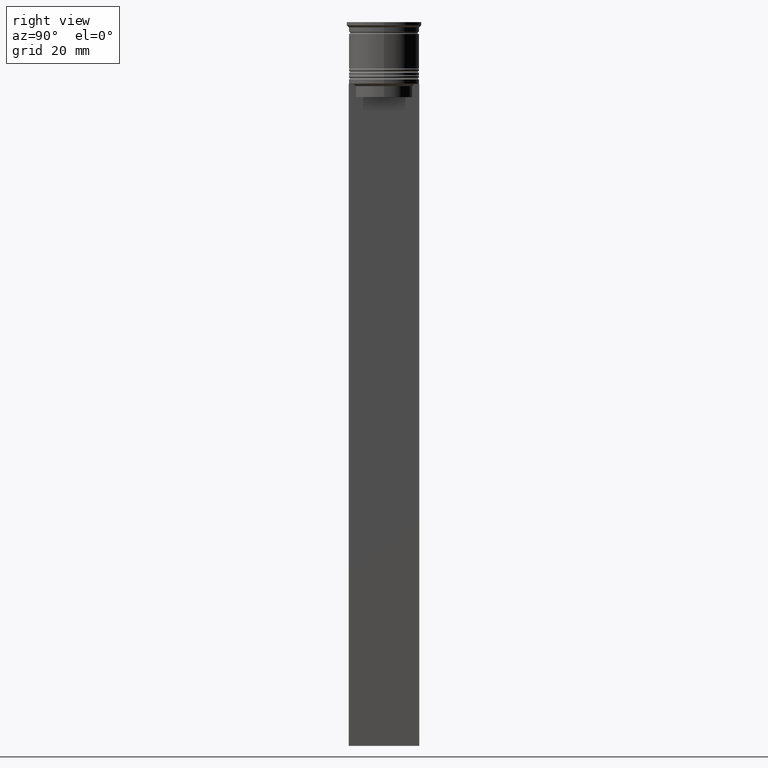
[diagram: clean part render]
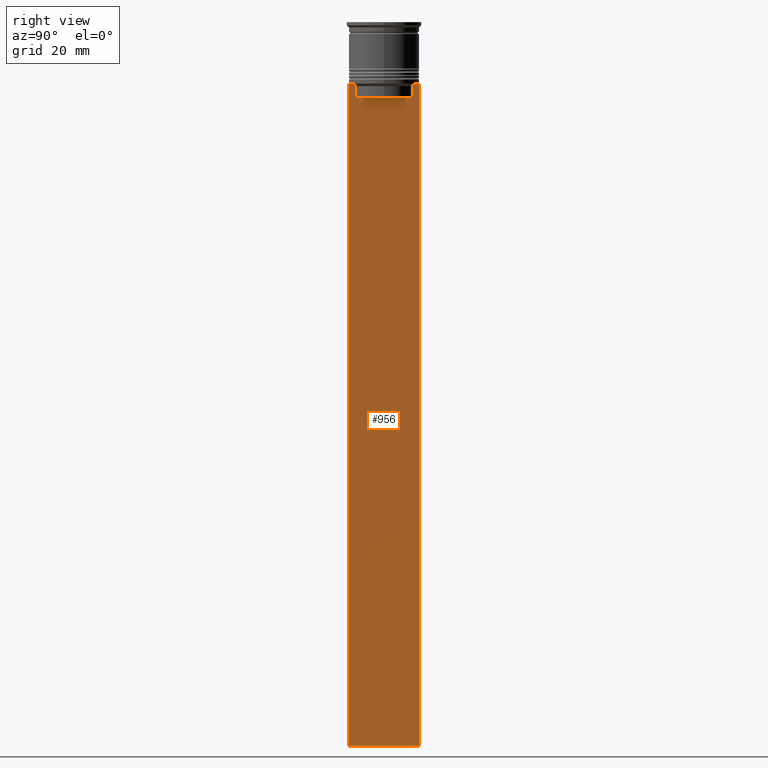
[diagram: same view with one face highlighted and labeled with its STEP entity id]
A machine part, right view. The second image highlights one B-rep face of the part: STEP entity #956.
In plain terms, the highlighted planar face has unit normal (-1, 0, 0).
Its self-contained STEP definition (entity closure, byte-faithful):
#54 = CARTESIAN_POINT ( 'NONE',  ( 0.5000000000000001110, -8.000000000000003553, -14.00000000000000178 ) ) ;
#56 = CARTESIAN_POINT ( 'NONE',  ( 0.5000000000000001110, -8.000000000000003553, 2.031219541881394530 ) ) ;
#57 = CARTESIAN_POINT ( 'NONE',  ( 0.5000000000000001110, 6.881860213634098500, -14.00000000000000178 ) ) ;
#103 = CARTESIAN_POINT ( 'NONE',  ( 0.5000000000000001110, -8.000000000000003553, -14.00000000000000178 ) ) ;
#155 = EDGE_CURVE ( 'NONE', #1501, #272, #1306, .T. ) ;
#199 = CARTESIAN_POINT ( 'NONE',  ( 0.5000000000000001110, -8.000000000000003553, -14.00000000000000178 ) ) ;
#263 = ORIENTED_EDGE ( 'NONE', *, *, #807, .F. ) ;
#272 = VERTEX_POINT ( 'NONE', #1562 ) ;
#277 = EDGE_CURVE ( 'NONE', #458, #2388, #1070, .T. ) ;
#278 = LINE ( 'NONE', #472, #1322 ) ;
#373 = EDGE_CURVE ( 'NONE', #2143, #2306, #278, .T. ) ;
#391 = VERTEX_POINT ( 'NONE', #57 ) ;
#401 = CARTESIAN_POINT ( 'NONE',  ( 0.5000000000000001110, -6.547597841511247019, -14.33335192438652150 ) ) ;
#458 = VERTEX_POINT ( 'NONE', #1868 ) ;
#463 = VECTOR ( 'NONE', #1763, 1000.000000000000000 ) ;
#472 = CARTESIAN_POINT ( 'NONE',  ( 0.5000000000000001110, 6.399999999999999467, -17.00000000000000000 ) ) ;
#481 = ORIENTED_EDGE ( 'NONE', *, *, #373, .T. ) ;
#505 = DIRECTION ( 'NONE',  ( -1.000000000000000000, 0.000000000000000000, 0.000000000000000000 ) ) ;
#517 = EDGE_CURVE ( 'NONE', #2233, #1146, #1831, .T. ) ;
#560 = CARTESIAN_POINT ( 'NONE',  ( 0.5000000000000001110, 6.380438856379708312, -14.50000000000000000 ) ) ;
#573 = VECTOR ( 'NONE', #1440, 1000.000000000000000 ) ;
#617 = VECTOR ( 'NONE', #1702, 1000.000000000000000 ) ;
#655 = VECTOR ( 'NONE', #777, 1000.000000000000000 ) ;
#668 = LINE ( 'NONE', #1034, #720 ) ;
#682 = CARTESIAN_POINT ( 'NONE',  ( 0.5000000000000001110, -8.000000000000003553, -163.9999999999999716 ) ) ;
#694 = CARTESIAN_POINT ( 'NONE',  ( 0.5000000000000001110, 6.881860213634098500, -14.00000000000000178 ) ) ;
#720 = VECTOR ( 'NONE', #1812, 1000.000000000000000 ) ;
#777 = DIRECTION ( 'NONE',  ( 0.000000000000000000, 0.000000000000000000, -1.000000000000000000 ) ) ;
#807 = EDGE_CURVE ( 'NONE', #2233, #272, #1953, .T. ) ;
#841 = VECTOR ( 'NONE', #2331, 1000.000000000000000 ) ;
#881 = EDGE_CURVE ( 'NONE', #391, #1020, #1169, .T. ) ;
#885 = DIRECTION ( 'NONE',  ( -0.000000000000000000, -0.000000000000000000, 1.000000000000000000 ) ) ;
#909 = DIRECTION ( 'NONE',  ( 0.000000000000000000, -1.000000000000000000, 0.000000000000000000 ) ) ;
#956 = ADVANCED_FACE ( 'NONE', ( #2403 ), #1435, .F. ) ;
#962 = CARTESIAN_POINT ( 'NONE',  ( 0.5000000000000001110, -7.884161337770806632, -14.00000000000000178 ) ) ;
#977 = CARTESIAN_POINT ( 'NONE',  ( 0.5000000000000001110, 7.884161337770806632, -14.00000000000000178 ) ) ;
#1020 = VERTEX_POINT ( 'NONE', #560 ) ;
#1034 = CARTESIAN_POINT ( 'NONE',  ( 0.5000000000000001110, -8.000000000000003553, -14.00000000000000178 ) ) ;
#1037 = VECTOR ( 'NONE', #2224, 1000.000000000000000 ) ;
#1055 = VERTEX_POINT ( 'NONE', #962 ) ;
#1068 = LINE ( 'NONE', #1847, #1329 ) ;
#1070 = B_SPLINE_CURVE_WITH_KNOTS ( 'NONE', 3,
 ( #1917, #401, #2332, #1116 ),
 .UNSPECIFIED., .F., .F.,
 ( 4, 4 ),
 ( 0.02996184199614751464, 0.03067452609193705923 ),
 .UNSPECIFIED. ) ;
#1104 = CARTESIAN_POINT ( 'NONE',  ( 0.5000000000000001110, 6.380438856379708312, 0.000000000000000000 ) ) ;
#1116 = CARTESIAN_POINT ( 'NONE',  ( 0.5000000000000001110, -6.881860213634098500, -14.00000000000000178 ) ) ;
#1146 = VERTEX_POINT ( 'NONE', #977 ) ;
#1169 = B_SPLINE_CURVE_WITH_KNOTS ( 'NONE', 3,
 ( #694, #2060, #2420, #2004 ),
 .UNSPECIFIED., .F., .F.,
 ( 4, 4 ),
 ( 0.01172465562756038263, 0.01243276816391822651 ),
 .UNSPECIFIED. ) ;
#1211 = ORIENTED_EDGE ( 'NONE', *, *, #155, .T. ) ;
#1259 = EDGE_CURVE ( 'NONE', #2306, #458, #1068, .T. ) ;
#1306 = LINE ( 'NONE', #682, #1037 ) ;
#1322 = VECTOR ( 'NONE', #1800, 1000.000000000000000 ) ;
#1325 = AXIS2_PLACEMENT_3D ( 'NONE', #2215, #505, #2020 ) ;
#1329 = VECTOR ( 'NONE', #885, 1000.000000000000000 ) ;
#1348 = ORIENTED_EDGE ( 'NONE', *, *, #1764, .T. ) ;
#1380 = CARTESIAN_POINT ( 'NONE',  ( 0.5000000000000001110, 7.999999999999996447, 2.031219541881394530 ) ) ;
#1397 = EDGE_CURVE ( 'NONE', #1020, #2143, #2489, .T. ) ;
#1407 = LINE ( 'NONE', #56, #841 ) ;
#1413 = CARTESIAN_POINT ( 'NONE',  ( 0.5000000000000001110, 6.380438856379708312, -17.00000000000000000 ) ) ;
#1435 = PLANE ( 'NONE',  #1325 ) ;
#1440 = DIRECTION ( 'NONE',  ( 0.000000000000000000, -1.000000000000000000, 0.000000000000000000 ) ) ;
#1469 = CARTESIAN_POINT ( 'NONE',  ( 0.5000000000000001110, -6.881860213634098500, -14.00000000000000178 ) ) ;
#1501 = VERTEX_POINT ( 'NONE', #2471 ) ;
#1562 = CARTESIAN_POINT ( 'NONE',  ( 0.5000000000000001110, 7.999999999999996447, -163.9999999999999716 ) ) ;
#1576 = ORIENTED_EDGE ( 'NONE', *, *, #2393, .T. ) ;
#1665 = EDGE_CURVE ( 'NONE', #1055, #2355, #1882, .T. ) ;
#1702 = DIRECTION ( 'NONE',  ( 0.000000000000000000, -1.000000000000000000, 0.000000000000000000 ) ) ;
#1751 = EDGE_CURVE ( 'NONE', #2355, #1501, #1407, .T. ) ;
#1763 = DIRECTION ( 'NONE',  ( 0.000000000000000000, 0.000000000000000000, -1.000000000000000000 ) ) ;
#1764 = EDGE_CURVE ( 'NONE', #1146, #391, #668, .T. ) ;
#1800 = DIRECTION ( 'NONE',  ( 0.000000000000000000, -1.000000000000000000, 0.000000000000000000 ) ) ;
#1812 = DIRECTION ( 'NONE',  ( 0.000000000000000000, -1.000000000000000000, 0.000000000000000000 ) ) ;
#1831 = LINE ( 'NONE', #103, #573 ) ;
#1847 = CARTESIAN_POINT ( 'NONE',  ( 0.5000000000000001110, -6.380438856379708312, 0.000000000000000000 ) ) ;
#1864 = ORIENTED_EDGE ( 'NONE', *, *, #881, .T. ) ;
#1865 = LINE ( 'NONE', #2041, #2466 ) ;
#1868 = CARTESIAN_POINT ( 'NONE',  ( 0.5000000000000001110, -6.380438856379708312, -14.50000000000000000 ) ) ;
#1882 = LINE ( 'NONE', #199, #617 ) ;
#1917 = CARTESIAN_POINT ( 'NONE',  ( 0.5000000000000001110, -6.380438856379708312, -14.50000000000000000 ) ) ;
#1953 = LINE ( 'NONE', #1380, #463 ) ;
#1991 = CARTESIAN_POINT ( 'NONE',  ( 0.5000000000000001110, -6.380438856379708312, -17.00000000000000000 ) ) ;
#2004 = CARTESIAN_POINT ( 'NONE',  ( 0.5000000000000001110, 6.380438856379708312, -14.50000000000000000 ) ) ;
#2020 = DIRECTION ( 'NONE',  ( 0.000000000000000000, 0.000000000000000000, 1.000000000000000000 ) ) ;
#2041 = CARTESIAN_POINT ( 'NONE',  ( 0.5000000000000001110, -8.000000000000003553, -14.00000000000000178 ) ) ;
#2060 = CARTESIAN_POINT ( 'NONE',  ( 0.5000000000000001110, 6.714736947114692711, -14.16668390704818847 ) ) ;
#2143 = VERTEX_POINT ( 'NONE', #1413 ) ;
#2148 = ORIENTED_EDGE ( 'NONE', *, *, #1665, .T. ) ;
#2152 = ORIENTED_EDGE ( 'NONE', *, *, #517, .T. ) ;
#2181 = ORIENTED_EDGE ( 'NONE', *, *, #277, .T. ) ;
#2196 = CARTESIAN_POINT ( 'NONE',  ( 0.5000000000000001110, 7.999999999999996447, -14.00000000000000178 ) ) ;
#2215 = CARTESIAN_POINT ( 'NONE',  ( 0.5000000000000001110, -8.000000000000003553, 2.031219541881394530 ) ) ;
#2224 = DIRECTION ( 'NONE',  ( 0.000000000000000000, 1.000000000000000000, 0.000000000000000000 ) ) ;
#2233 = VERTEX_POINT ( 'NONE', #2196 ) ;
#2306 = VERTEX_POINT ( 'NONE', #1991 ) ;
#2331 = DIRECTION ( 'NONE',  ( 0.000000000000000000, 0.000000000000000000, -1.000000000000000000 ) ) ;
#2332 = CARTESIAN_POINT ( 'NONE',  ( 0.5000000000000001110, -6.714736947305993908, -14.16668390685738821 ) ) ;
#2340 = ORIENTED_EDGE ( 'NONE', *, *, #1397, .T. ) ;
#2349 = ORIENTED_EDGE ( 'NONE', *, *, #1751, .T. ) ;
#2355 = VERTEX_POINT ( 'NONE', #54 ) ;
#2369 = ORIENTED_EDGE ( 'NONE', *, *, #1259, .T. ) ;
#2372 = EDGE_LOOP ( 'NONE', ( #1348, #1864, #2340, #481, #2369, #2181, #1576, #2148, #2349, #1211, #263, #2152 ) ) ;
#2388 = VERTEX_POINT ( 'NONE', #1469 ) ;
#2393 = EDGE_CURVE ( 'NONE', #2388, #1055, #1865, .T. ) ;
#2403 = FACE_OUTER_BOUND ( 'NONE', #2372, .T. ) ;
#2420 = CARTESIAN_POINT ( 'NONE',  ( 0.5000000000000001110, 6.547597841304911626, -14.33335192459222718 ) ) ;
#2466 = VECTOR ( 'NONE', #909, 1000.000000000000000 ) ;
#2471 = CARTESIAN_POINT ( 'NONE',  ( 0.5000000000000001110, -8.000000000000003553, -163.9999999999999716 ) ) ;
#2489 = LINE ( 'NONE', #1104, #655 ) ;